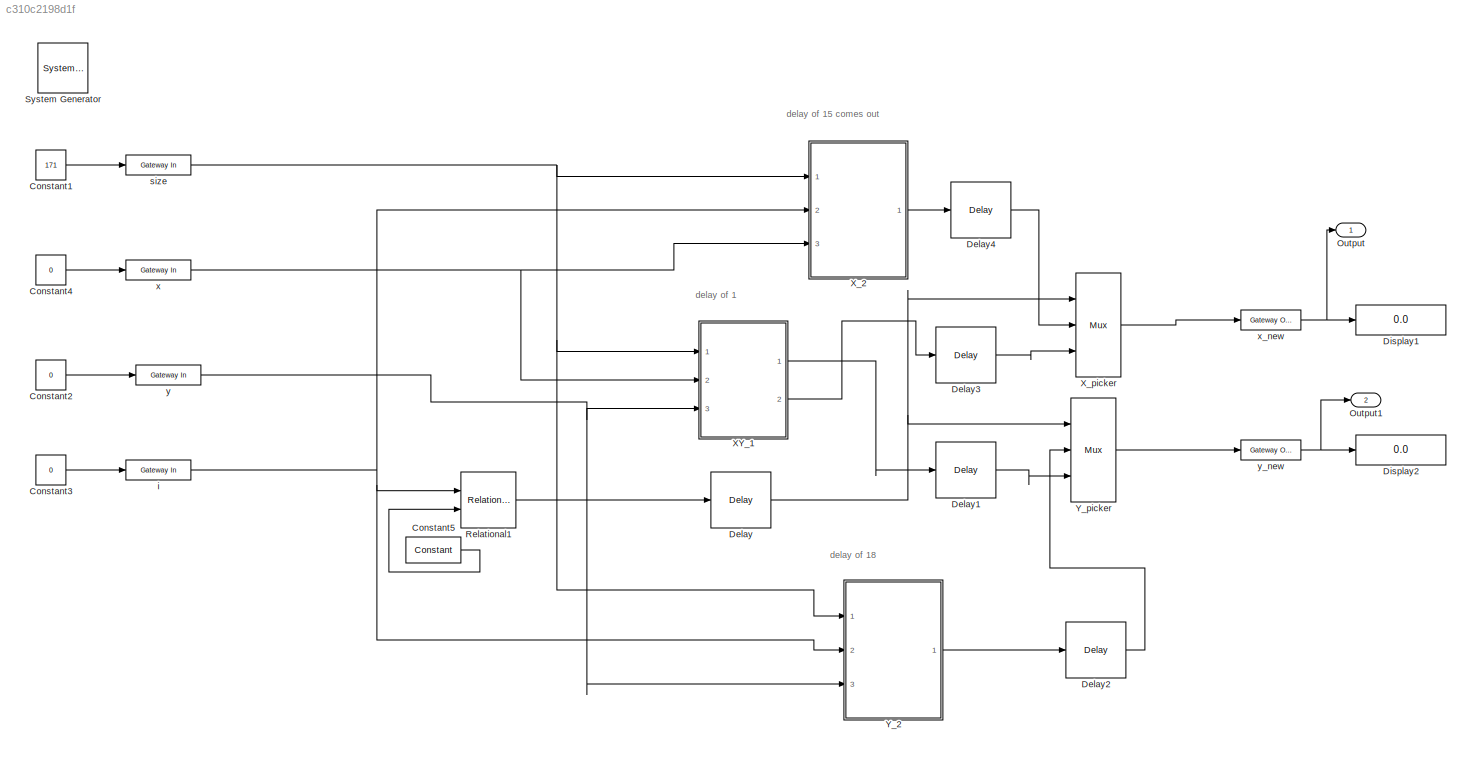
MODEL slx_c310c2198d1f
KIND model
CONFIG AbsTol = auto
CONFIG EnableMultiTasking = off
CONFIG FixedStep = auto
CONFIG MaxStep = auto
CONFIG MinStep = auto
CONFIG RelTol = 1e-3
CONFIG SampleTimeConstraint = Unconstrained
CONFIG Solver = VariableStepAuto
CONFIG SolverName = VariableStepAuto
CONFIG StartTime = 0.0
CONFIG StopTime = 50
BLOCK [Reference]  System Generator  REF=xbsIndex_r4/ System Generator
  AttributesFormatString = System\nGenerator
  Ports = []
  SourceBlock = xbsIndex_r4/ System Generator
  SourceType = Xilinx System Generator Block
  Tag = genX
  UserDataPersistent = on
BLOCK [Constant] Constant1
  Value = 171
BLOCK [Constant] Constant2
  Value = 0
BLOCK [Constant] Constant3
  Value = 0
BLOCK [Constant] Constant4
  Value = 0
BLOCK [Reference] Constant5  REF=xbsIndex_r4/Constant
  Ports = [0, 1]
  SourceBlock = xbsIndex_r4/Constant
  SourceType = Xilinx Constant Block Block
BLOCK [Reference] Delay  REF=xbsIndex_r4/Delay
  Ports = [1, 1]
  SourceBlock = xbsIndex_r4/Delay
  SourceType = Xilinx Delay Block
BLOCK [Reference] Delay1  REF=xbsIndex_r4/Delay
  Ports = [1, 1]
  SourceBlock = xbsIndex_r4/Delay
  SourceType = Xilinx Delay Block
BLOCK [Reference] Delay2  REF=xbsIndex_r4/Delay
  Ports = [1, 1]
  SourceBlock = xbsIndex_r4/Delay
  SourceType = Xilinx Delay Block
BLOCK [Reference] Delay3  REF=xbsIndex_r4/Delay
  Ports = [1, 1]
  SourceBlock = xbsIndex_r4/Delay
  SourceType = Xilinx Delay Block
BLOCK [Reference] Delay4  REF=xbsIndex_r4/Delay
  Ports = [1, 1]
  SourceBlock = xbsIndex_r4/Delay
  SourceType = Xilinx Delay Block
BLOCK [Display] Display1
  Decimation = 1
  Format = long
  Ports = [1]
BLOCK [Display] Display2
  Decimation = 1
  Format = long
  Ports = [1]
BLOCK [Outport] Output
BLOCK [Outport] Output1
  Port = 2
BLOCK [Reference] Relational1  REF=xbsIndex_r4/Relational
  Ports = [2, 1]
  SourceBlock = xbsIndex_r4/Relational
  SourceType = Xilinx Arithmetic Relational Operator Block
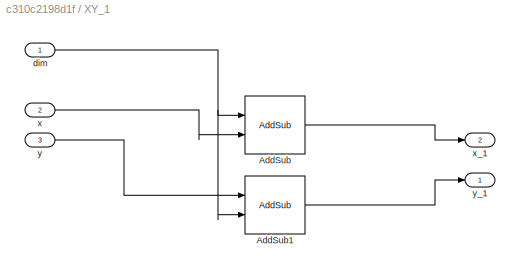
BLOCK [SubSystem] XY_1
  Ports = [3, 2]
  RequestExecContextInheritance = off
BLOCK [Reference] XY_1/AddSub  REF=xbsIndex_r4/AddSub
  Ports = [2, 1]
  SourceBlock = xbsIndex_r4/AddSub
  SourceType = Xilinx Adder/Subtracter Block
BLOCK [Reference] XY_1/AddSub1  REF=xbsIndex_r4/AddSub
  Ports = [2, 1]
  SourceBlock = xbsIndex_r4/AddSub
  SourceType = Xilinx Adder/Subtracter Block
BLOCK [Inport] XY_1/dim
BLOCK [Inport] XY_1/x
  NameLocation = top
  Port = 2
BLOCK [Outport] XY_1/x_1
  Port = 2
BLOCK [Inport] XY_1/y
  Port = 3
BLOCK [Outport] XY_1/y_1
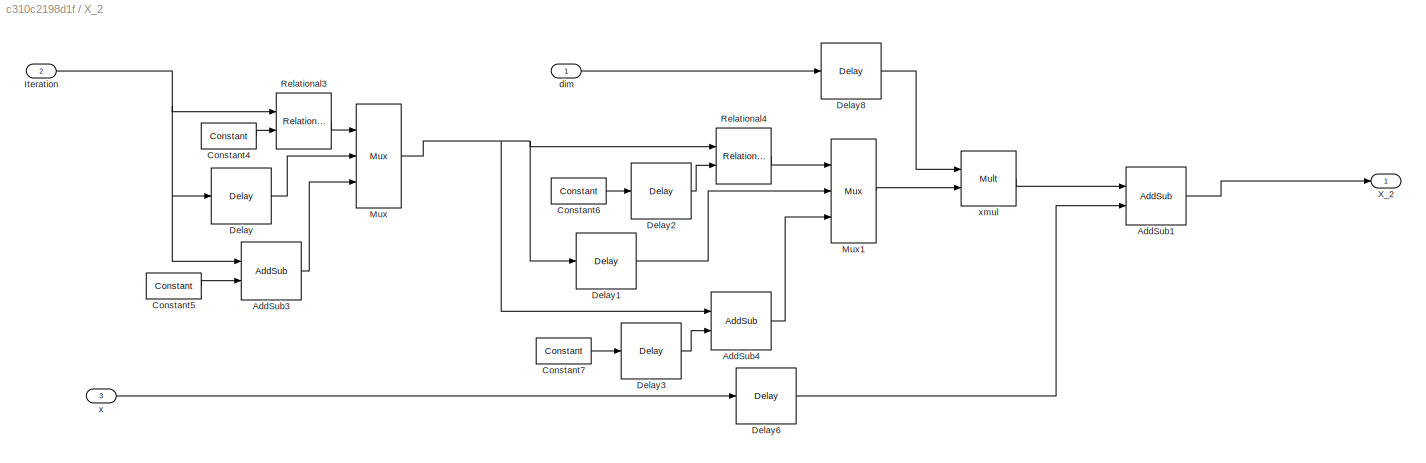
BLOCK [SubSystem] X_2
  Ports = [3, 1]
  RequestExecContextInheritance = off
BLOCK [Reference] X_2/AddSub1  REF=xbsIndex_r4/AddSub
  Ports = [2, 1]
  SourceBlock = xbsIndex_r4/AddSub
  SourceType = Xilinx Adder/Subtracter Block
BLOCK [Reference] X_2/AddSub3  REF=xbsIndex_r4/AddSub
  Ports = [2, 1]
  SourceBlock = xbsIndex_r4/AddSub
  SourceType = Xilinx Adder/Subtracter Block
BLOCK [Reference] X_2/AddSub4  REF=xbsIndex_r4/AddSub
  Ports = [2, 1]
  SourceBlock = xbsIndex_r4/AddSub
  SourceType = Xilinx Adder/Subtracter Block
BLOCK [Reference] X_2/Constant4  REF=xbsIndex_r4/Constant
  Ports = [0, 1]
  SourceBlock = xbsIndex_r4/Constant
  SourceType = Xilinx Constant Block Block
BLOCK [Reference] X_2/Constant5  REF=xbsIndex_r4/Constant
  Ports = [0, 1]
  SourceBlock = xbsIndex_r4/Constant
  SourceType = Xilinx Constant Block Block
BLOCK [Reference] X_2/Constant6  REF=xbsIndex_r4/Constant
  Ports = [0, 1]
  SourceBlock = xbsIndex_r4/Constant
  SourceType = Xilinx Constant Block Block
BLOCK [Reference] X_2/Constant7  REF=xbsIndex_r4/Constant
  Ports = [0, 1]
  SourceBlock = xbsIndex_r4/Constant
  SourceType = Xilinx Constant Block Block
BLOCK [Reference] X_2/Delay  REF=xbsIndex_r4/Delay
  Ports = [1, 1]
  SourceBlock = xbsIndex_r4/Delay
  SourceType = Xilinx Delay Block
BLOCK [Reference] X_2/Delay1  REF=xbsIndex_r4/Delay
  Ports = [1, 1]
  SourceBlock = xbsIndex_r4/Delay
  SourceType = Xilinx Delay Block
BLOCK [Reference] X_2/Delay2  REF=xbsIndex_r4/Delay
  Ports = [1, 1]
  SourceBlock = xbsIndex_r4/Delay
  SourceType = Xilinx Delay Block
BLOCK [Reference] X_2/Delay3  REF=xbsIndex_r4/Delay
  Ports = [1, 1]
  SourceBlock = xbsIndex_r4/Delay
  SourceType = Xilinx Delay Block
BLOCK [Reference] X_2/Delay6  REF=xbsIndex_r4/Delay
  Ports = [1, 1]
  SourceBlock = xbsIndex_r4/Delay
  SourceType = Xilinx Delay Block
BLOCK [Reference] X_2/Delay8  REF=xbsIndex_r4/Delay
  Ports = [1, 1]
  SourceBlock = xbsIndex_r4/Delay
  SourceType = Xilinx Delay Block
BLOCK [Inport] X_2/Iteration
  Port = 2
BLOCK [Reference] X_2/Mux  REF=xbsIndex_r4/Mux
  Ports = [3, 1]
  SourceBlock = xbsIndex_r4/Mux
  SourceType = Xilinx Bus Multiplexer Block
BLOCK [Reference] X_2/Mux1  REF=xbsIndex_r4/Mux
  Ports = [3, 1]
  SourceBlock = xbsIndex_r4/Mux
  SourceType = Xilinx Bus Multiplexer Block
BLOCK [Reference] X_2/Relational3  REF=xbsIndex_r4/Relational
  Ports = [2, 1]
  SourceBlock = xbsIndex_r4/Relational
  SourceType = Xilinx Arithmetic Relational Operator Block
BLOCK [Reference] X_2/Relational4  REF=xbsIndex_r4/Relational
  Ports = [2, 1]
  SourceBlock = xbsIndex_r4/Relational
  SourceType = Xilinx Arithmetic Relational Operator Block
BLOCK [Outport] X_2/X_2
BLOCK [Inport] X_2/dim
BLOCK [Inport] X_2/x
  Port = 3
BLOCK [Reference] X_2/xmul  REF=xbsIndex_r4/Mult
  Ports = [2, 1]
  SourceBlock = xbsIndex_r4/Mult
  SourceType = Xilinx Multiplier Block
BLOCK [Reference] X_picker  REF=xbsIndex_r4/Mux
  Ports = [3, 1]
  SourceBlock = xbsIndex_r4/Mux
  SourceType = Xilinx Bus Multiplexer Block
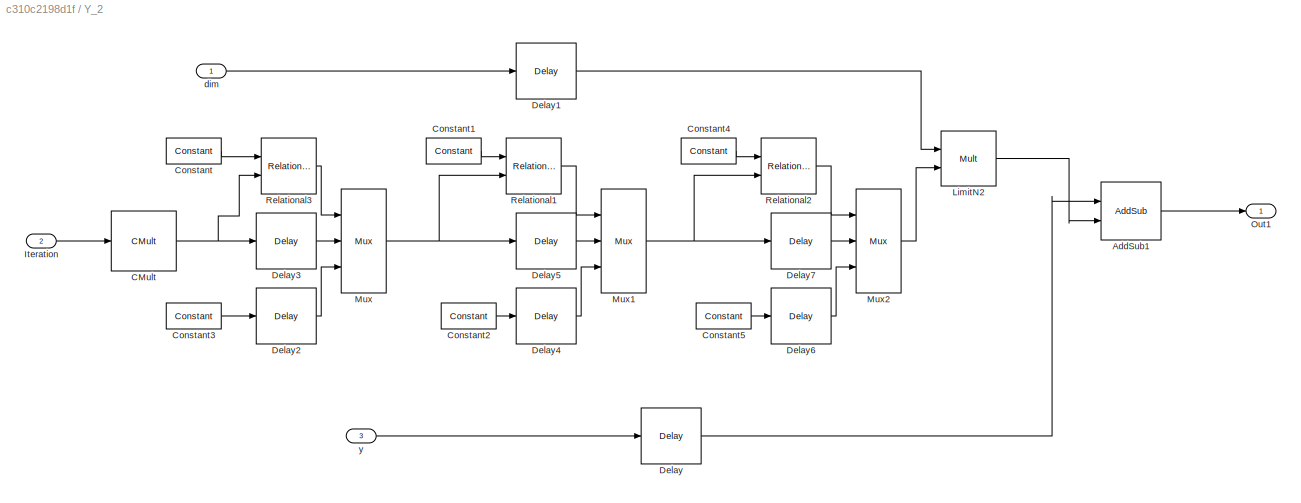
BLOCK [SubSystem] Y_2
  Ports = [3, 1]
  RequestExecContextInheritance = off
BLOCK [Reference] Y_2/AddSub1  REF=xbsIndex_r4/AddSub
  Ports = [2, 1]
  SourceBlock = xbsIndex_r4/AddSub
  SourceType = Xilinx Adder/Subtracter Block
BLOCK [Reference] Y_2/CMult  REF=xbsIndex_r4/CMult
  Ports = [1, 1]
  SourceBlock = xbsIndex_r4/CMult
  SourceType = Xilinx Constant Multiplier Block
BLOCK [Reference] Y_2/Constant  REF=xbsIndex_r4/Constant
  Ports = [0, 1]
  SourceBlock = xbsIndex_r4/Constant
  SourceType = Xilinx Constant Block Block
BLOCK [Reference] Y_2/Constant1  REF=xbsIndex_r4/Constant
  Ports = [0, 1]
  SourceBlock = xbsIndex_r4/Constant
  SourceType = Xilinx Constant Block Block
BLOCK [Reference] Y_2/Constant2  REF=xbsIndex_r4/Constant
  Ports = [0, 1]
  SourceBlock = xbsIndex_r4/Constant
  SourceType = Xilinx Constant Block Block
BLOCK [Reference] Y_2/Constant3  REF=xbsIndex_r4/Constant
  Ports = [0, 1]
  SourceBlock = xbsIndex_r4/Constant
  SourceType = Xilinx Constant Block Block
BLOCK [Reference] Y_2/Constant4  REF=xbsIndex_r4/Constant
  Ports = [0, 1]
  SourceBlock = xbsIndex_r4/Constant
  SourceType = Xilinx Constant Block Block
BLOCK [Reference] Y_2/Constant5  REF=xbsIndex_r4/Constant
  Ports = [0, 1]
  SourceBlock = xbsIndex_r4/Constant
  SourceType = Xilinx Constant Block Block
BLOCK [Reference] Y_2/Delay  REF=xbsIndex_r4/Delay
  Ports = [1, 1]
  SourceBlock = xbsIndex_r4/Delay
  SourceType = Xilinx Delay Block
BLOCK [Reference] Y_2/Delay1  REF=xbsIndex_r4/Delay
  Ports = [1, 1]
  SourceBlock = xbsIndex_r4/Delay
  SourceType = Xilinx Delay Block
BLOCK [Reference] Y_2/Delay2  REF=xbsIndex_r4/Delay
  Ports = [1, 1]
  SourceBlock = xbsIndex_r4/Delay
  SourceType = Xilinx Delay Block
BLOCK [Reference] Y_2/Delay3  REF=xbsIndex_r4/Delay
  Ports = [1, 1]
  SourceBlock = xbsIndex_r4/Delay
  SourceType = Xilinx Delay Block
BLOCK [Reference] Y_2/Delay4  REF=xbsIndex_r4/Delay
  Ports = [1, 1]
  SourceBlock = xbsIndex_r4/Delay
  SourceType = Xilinx Delay Block
BLOCK [Reference] Y_2/Delay5  REF=xbsIndex_r4/Delay
  Ports = [1, 1]
  SourceBlock = xbsIndex_r4/Delay
  SourceType = Xilinx Delay Block
BLOCK [Reference] Y_2/Delay6  REF=xbsIndex_r4/Delay
  Ports = [1, 1]
  SourceBlock = xbsIndex_r4/Delay
  SourceType = Xilinx Delay Block
BLOCK [Reference] Y_2/Delay7  REF=xbsIndex_r4/Delay
  Ports = [1, 1]
  SourceBlock = xbsIndex_r4/Delay
  SourceType = Xilinx Delay Block
BLOCK [Inport] Y_2/Iteration
  Port = 2
BLOCK [Reference] Y_2/LimitN2  REF=xbsIndex_r4/Mult
  Ports = [2, 1]
  SourceBlock = xbsIndex_r4/Mult
  SourceType = Xilinx Multiplier Block
BLOCK [Reference] Y_2/Mux  REF=xbsIndex_r4/Mux
  Ports = [3, 1]
  SourceBlock = xbsIndex_r4/Mux
  SourceType = Xilinx Bus Multiplexer Block
BLOCK [Reference] Y_2/Mux1  REF=xbsIndex_r4/Mux
  Ports = [3, 1]
  SourceBlock = xbsIndex_r4/Mux
  SourceType = Xilinx Bus Multiplexer Block
BLOCK [Reference] Y_2/Mux2  REF=xbsIndex_r4/Mux
  Ports = [3, 1]
  SourceBlock = xbsIndex_r4/Mux
  SourceType = Xilinx Bus Multiplexer Block
BLOCK [Outport] Y_2/Out1
BLOCK [Reference] Y_2/Relational1  REF=xbsIndex_r4/Relational
  Ports = [2, 1]
  SourceBlock = xbsIndex_r4/Relational
  SourceType = Xilinx Arithmetic Relational Operator Block
BLOCK [Reference] Y_2/Relational2  REF=xbsIndex_r4/Relational
  Ports = [2, 1]
  SourceBlock = xbsIndex_r4/Relational
  SourceType = Xilinx Arithmetic Relational Operator Block
BLOCK [Reference] Y_2/Relational3  REF=xbsIndex_r4/Relational
  Ports = [2, 1]
  SourceBlock = xbsIndex_r4/Relational
  SourceType = Xilinx Arithmetic Relational Operator Block
BLOCK [Inport] Y_2/dim
BLOCK [Inport] Y_2/y
  Port = 3
BLOCK [Reference] Y_picker  REF=xbsIndex_r4/Mux
  Ports = [3, 1]
  SourceBlock = xbsIndex_r4/Mux
  SourceType = Xilinx Bus Multiplexer Block
BLOCK [Reference] i  REF=xbsIndex_r4/Gateway In
  Ports = [1, 1]
  SourceBlock = xbsIndex_r4/Gateway In
  SourceType = Xilinx Gateway In Block
BLOCK [Reference] size  REF=xbsIndex_r4/Gateway In
  Ports = [1, 1]
  SourceBlock = xbsIndex_r4/Gateway In
  SourceType = Xilinx Gateway In Block
BLOCK [Reference] x  REF=xbsIndex_r4/Gateway In
  Ports = [1, 1]
  SourceBlock = xbsIndex_r4/Gateway In
  SourceType = Xilinx Gateway In Block
BLOCK [Reference] x_new  REF=xbsIndex_r4/Gateway Out
  Ports = [1, 1]
  SourceBlock = xbsIndex_r4/Gateway Out
  SourceType = Xilinx Gateway Out Block
BLOCK [Reference] y  REF=xbsIndex_r4/Gateway In
  Ports = [1, 1]
  SourceBlock = xbsIndex_r4/Gateway In
  SourceType = Xilinx Gateway In Block
BLOCK [Reference] y_new  REF=xbsIndex_r4/Gateway Out
  Ports = [1, 1]
  SourceBlock = xbsIndex_r4/Gateway Out
  SourceType = Xilinx Gateway Out Block
ANNOTATION (root): delay of 1
ANNOTATION (root): delay of 15 comes out
ANNOTATION (root): delay of 18
LINE Constant1:1 -> size:1
LINE Constant2:1 -> y:1
LINE Constant3:1 -> i:1
LINE Constant4:1 -> x:1
LINE Constant5:1 -> Relational1:2
LINE Delay1:1 -> Y_picker:3
LINE Delay2:1 -> Y_picker:2
LINE Delay3:1 -> X_picker:3
LINE Delay4:1 -> X_picker:2
NET Delay:1 -> X_picker:1, Y_picker:1
LINE Relational1:1 -> Delay:1
LINE XY_1/AddSub1:1 -> XY_1/y_1:1
LINE XY_1/AddSub:1 -> XY_1/x_1:1
NET XY_1/dim:1 -> XY_1/AddSub1:2, XY_1/AddSub:1
LINE XY_1/x:1 -> XY_1/AddSub:2
LINE XY_1/y:1 -> XY_1/AddSub1:1
LINE XY_1:1 -> Delay1:1
LINE XY_1:2 -> Delay3:1
LINE X_2/AddSub1:1 -> X_2/X_2:1
LINE X_2/AddSub3:1 -> X_2/Mux:3
LINE X_2/AddSub4:1 -> X_2/Mux1:3
LINE X_2/Constant4:1 -> X_2/Relational3:2
LINE X_2/Constant5:1 -> X_2/AddSub3:2
LINE X_2/Constant6:1 -> X_2/Delay2:1
LINE X_2/Constant7:1 -> X_2/Delay3:1
LINE X_2/Delay1:1 -> X_2/Mux1:2
LINE X_2/Delay2:1 -> X_2/Relational4:2
LINE X_2/Delay3:1 -> X_2/AddSub4:2
LINE X_2/Delay6:1 -> X_2/AddSub1:2
LINE X_2/Delay8:1 -> X_2/xmul:1
LINE X_2/Delay:1 -> X_2/Mux:2
NET X_2/Iteration:1 -> X_2/AddSub3:1, X_2/Delay:1, X_2/Relational3:1
LINE X_2/Mux1:1 -> X_2/xmul:2
NET X_2/Mux:1 -> X_2/AddSub4:1, X_2/Delay1:1, X_2/Relational4:1
LINE X_2/Relational3:1 -> X_2/Mux:1
LINE X_2/Relational4:1 -> X_2/Mux1:1
LINE X_2/dim:1 -> X_2/Delay8:1
LINE X_2/x:1 -> X_2/Delay6:1
LINE X_2/xmul:1 -> X_2/AddSub1:1
LINE X_2:1 -> Delay4:1
LINE X_picker:1 -> x_new:1
LINE Y_2/AddSub1:1 -> Y_2/Out1:1
NET Y_2/CMult:1 -> Y_2/Delay3:1, Y_2/Relational3:2
LINE Y_2/Constant1:1 -> Y_2/Relational1:1
LINE Y_2/Constant2:1 -> Y_2/Delay4:1
LINE Y_2/Constant3:1 -> Y_2/Delay2:1
LINE Y_2/Constant4:1 -> Y_2/Relational2:1
LINE Y_2/Constant5:1 -> Y_2/Delay6:1
LINE Y_2/Constant:1 -> Y_2/Relational3:1
LINE Y_2/Delay1:1 -> Y_2/LimitN2:1
LINE Y_2/Delay2:1 -> Y_2/Mux:3
LINE Y_2/Delay3:1 -> Y_2/Mux:2
LINE Y_2/Delay4:1 -> Y_2/Mux1:3
LINE Y_2/Delay5:1 -> Y_2/Mux1:2
LINE Y_2/Delay6:1 -> Y_2/Mux2:3
LINE Y_2/Delay7:1 -> Y_2/Mux2:2
LINE Y_2/Delay:1 -> Y_2/AddSub1:1
LINE Y_2/Iteration:1 -> Y_2/CMult:1
LINE Y_2/LimitN2:1 -> Y_2/AddSub1:2
NET Y_2/Mux1:1 -> Y_2/Delay7:1, Y_2/Relational2:2
LINE Y_2/Mux2:1 -> Y_2/LimitN2:2
NET Y_2/Mux:1 -> Y_2/Delay5:1, Y_2/Relational1:2
LINE Y_2/Relational1:1 -> Y_2/Mux1:1
LINE Y_2/Relational2:1 -> Y_2/Mux2:1
LINE Y_2/Relational3:1 -> Y_2/Mux:1
LINE Y_2/dim:1 -> Y_2/Delay1:1
LINE Y_2/y:1 -> Y_2/Delay:1
LINE Y_2:1 -> Delay2:1
LINE Y_picker:1 -> y_new:1
NET i:1 -> Relational1:1, X_2:2, Y_2:2
NET size:1 -> XY_1:1, X_2:1, Y_2:1
NET x:1 -> XY_1:2, X_2:3
NET x_new:1 -> Display1:1, Output:1
NET y:1 -> XY_1:3, Y_2:3
NET y_new:1 -> Display2:1, Output1:1
note: NET lines group one-source signal fan-out (src -> all destinations, sorted); 1:1 wires keep LINE
